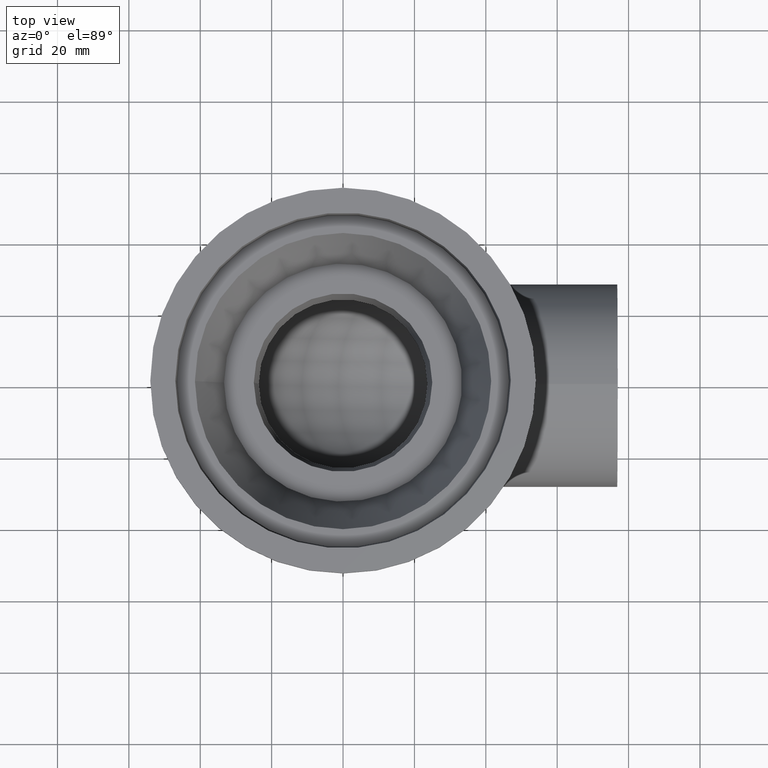
[diagram: clean part render]
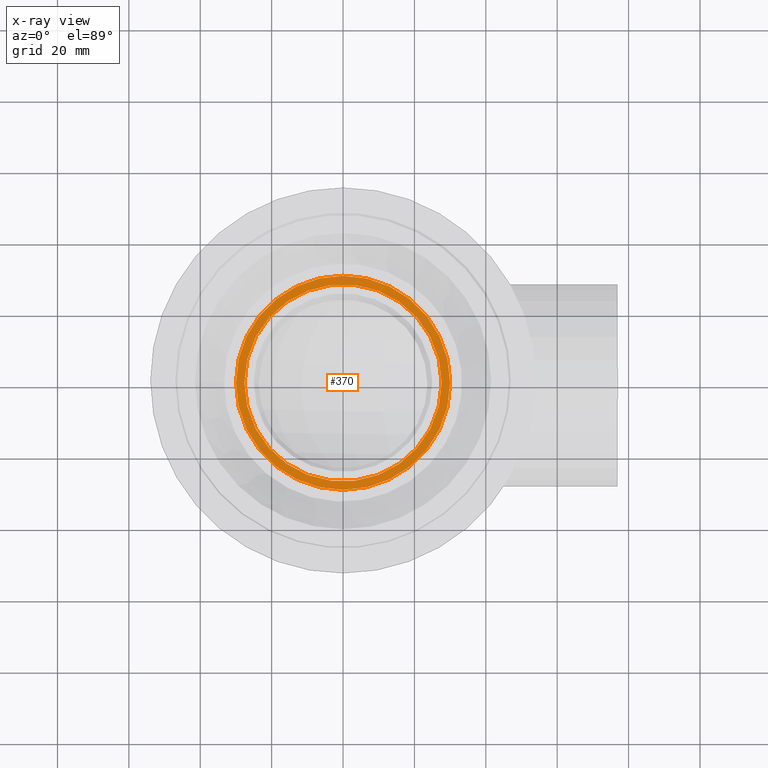
[diagram: x-ray — body ghosted, one internal face saturated and labeled with its STEP entity id]
A machine part, top view, then the same camera in x-ray: the body is ghosted and one INTERNAL B-rep face — a face not visible from any outside direction — is saturated and labeled: STEP entity #370.
In plain terms, the highlighted planar face has unit normal (0, 0, -1).
Its self-contained STEP definition (entity closure, byte-faithful):
#42=ORIENTED_EDGE('',*,*,#112,.F.);
#43=ORIENTED_EDGE('',*,*,#113,.F.);
#112=EDGE_CURVE('',#147,#147,#182,.F.);
#113=EDGE_CURVE('',#148,#148,#183,.T.);
#147=VERTEX_POINT('',#633);
#148=VERTEX_POINT('',#635);
#182=CIRCLE('',#419,30.);
#183=CIRCLE('',#420,27.633);
#217=EDGE_LOOP('',(#42));
#218=EDGE_LOOP('',(#43));
#287=FACE_BOUND('',#217,.T.);
#288=FACE_BOUND('',#218,.T.);
#357=PLANE('',#418);
#370=ADVANCED_FACE('',(#287,#288),#357,.T.);
#418=AXIS2_PLACEMENT_3D('',#631,#490,#491);
#419=AXIS2_PLACEMENT_3D('',#632,#492,#493);
#420=AXIS2_PLACEMENT_3D('',#634,#494,#495);
#490=DIRECTION('',(0.,0.,-1.));
#491=DIRECTION('',(-1.,0.,0.));
#492=DIRECTION('',(0.,0.,-1.));
#493=DIRECTION('',(-1.,0.,0.));
#494=DIRECTION('',(0.,0.,-1.));
#495=DIRECTION('',(-1.,0.,0.));
#631=CARTESIAN_POINT('',(-27.633,0.,-40.));
#632=CARTESIAN_POINT('',(0.,0.,-40.));
#633=CARTESIAN_POINT('',(-30.,0.,-40.));
#634=CARTESIAN_POINT('',(0.,0.,-40.));
#635=CARTESIAN_POINT('',(-27.633,0.,-40.));